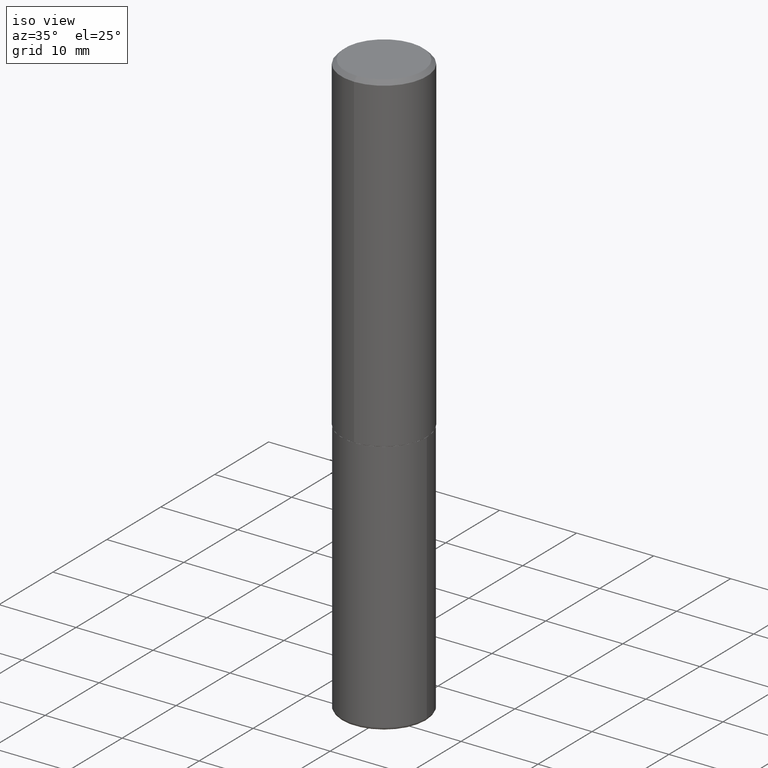
[diagram: clean part render]
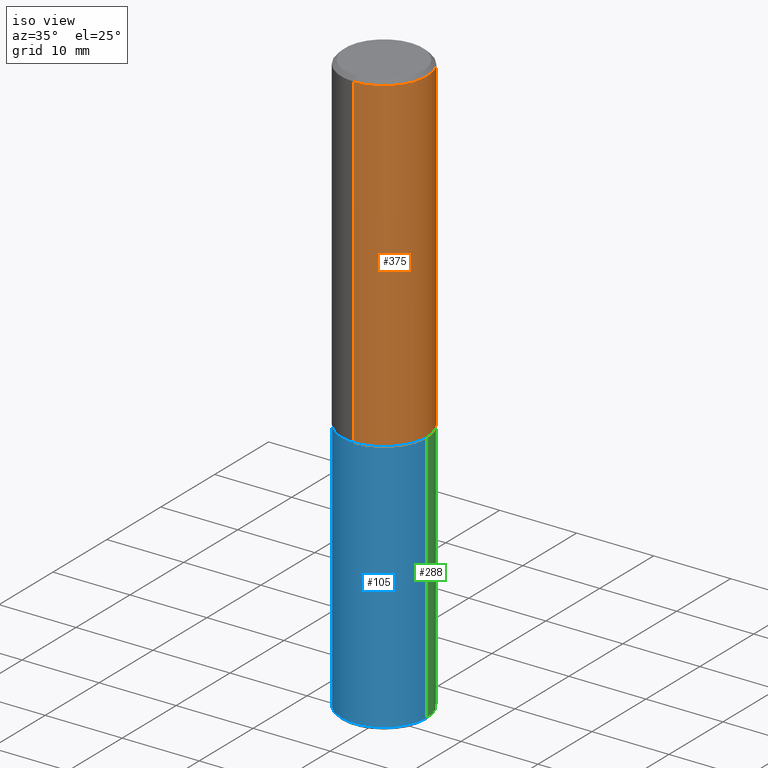
[diagram: same view with three faces highlighted in distinct colors, each labeled with its STEP entity id]
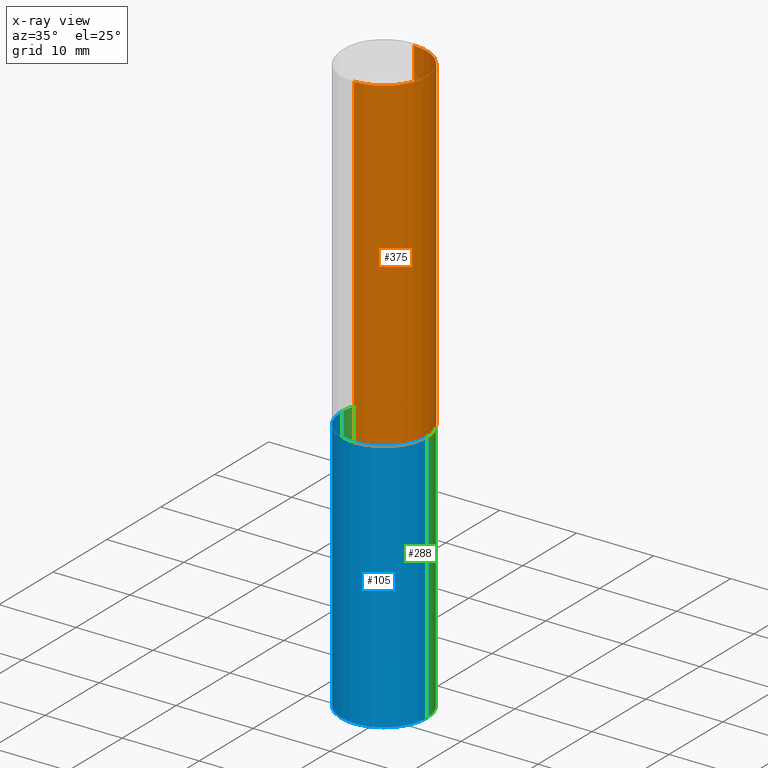
[diagram: x-ray of the same camera — body ghosted, the three highlighted faces saturated]
A machine part, iso view with three faces highlighted in distinct colors.
The next image is the same camera in x-ray (body ghosted, the three faces saturated) — at least one of them is partly hidden behind the body in this view.
Their STEP definitions:

[orange] entity #375 — the highlighted cylindrical surface (partial cylindrical patch) has radius 5.5563 mm, axis along (-0, 0, 1).
#8 = CARTESIAN_POINT ( 'NONE',  ( 4.890108441716715262E-31, -6.984150097255683598E-17, -0.02000000000000005246 ) ) ;
#10 = CARTESIAN_POINT ( 'NONE',  ( -1.500733937012521346E-15, -0.2187500000000000278, -0.01999999999999928571 ) ) ;
#11 = CARTESIAN_POINT ( 'NONE',  ( 1.527523085743870843E-15, 0.2187499999999998890, -0.02000000000000081574 ) ) ;
#16 = CARTESIAN_POINT ( 'NONE',  ( -1.527523085743831005E-15, -0.2187500000000061062, -1.686499999999999444 ) ) ;
#33 = EDGE_CURVE ( 'NONE', #82, #346, #392, .T. ) ;
#41 = EDGE_CURVE ( 'NONE', #157, #414, #361, .T. ) ;
#42 = AXIS2_PLACEMENT_3D ( 'NONE', #8, #192, #295 ) ;
#43 = AXIS2_PLACEMENT_3D ( 'NONE', #206, #347, #277 ) ;
#60 = DIRECTION ( 'NONE',  ( -2.445054220858351343E-29, 3.492075048627833097E-15, 1.000000000000000000 ) ) ;
#81 = AXIS2_PLACEMENT_3D ( 'NONE', #180, #306, #403 ) ;
#82 = VERTEX_POINT ( 'NONE', #135 ) ;
#90 = VECTOR ( 'NONE', #60, 39.37007874015748143 ) ;
#98 = EDGE_CURVE ( 'NONE', #414, #346, #353, .T. ) ;
#135 = CARTESIAN_POINT ( 'NONE',  ( 1.554312234475240653E-15, 0.2187499999999943101, -1.686500000000000998 ) ) ;
#154 = EDGE_LOOP ( 'NONE', ( #191, #188, #246, #411 ) ) ;
#157 = VERTEX_POINT ( 'NONE', #16 ) ;
#171 = CARTESIAN_POINT ( 'NONE',  ( 1.554312234475219551E-15, 0.2187500000000000833, -7.638914168873387857E-16 ) ) ;
#180 = CARTESIAN_POINT ( 'NONE',  ( 4.123583943477609610E-29, -5.889384569510841777E-15, -1.686500000000000110 ) ) ;
#188 = ORIENTED_EDGE ( 'NONE', *, *, #33, .T. ) ;
#191 = ORIENTED_EDGE ( 'NONE', *, *, #196, .T. ) ;
#192 = DIRECTION ( 'NONE',  ( -2.445054220858351343E-29, 3.492075048627833097E-15, 1.000000000000000000 ) ) ;
#196 = EDGE_CURVE ( 'NONE', #157, #82, #223, .T. ) ;
#201 = CARTESIAN_POINT ( 'NONE',  ( -1.527523085743871237E-15, -0.2187500000000000833, 7.638914168873387857E-16 ) ) ;
#206 = CARTESIAN_POINT ( 'NONE',  ( 0.000000000000000000, 0.000000000000000000, 0.000000000000000000 ) ) ;
#223 = CIRCLE ( 'NONE', #81, 0.2187500000000002220 ) ;
#245 = CYLINDRICAL_SURFACE ( 'NONE', #43, 0.2187500000000000833 ) ;
#246 = ORIENTED_EDGE ( 'NONE', *, *, #98, .F. ) ;
#277 = DIRECTION ( 'NONE',  ( -6.982962677686265922E-15, -1.000000000000000000, 3.492075048627833097E-15 ) ) ;
#295 = DIRECTION ( 'NONE',  ( -6.982962677686265922E-15, -1.000000000000000000, 3.492862791899308860E-15 ) ) ;
#306 = DIRECTION ( 'NONE',  ( -2.445054220858351343E-29, 3.492075048627833097E-15, 1.000000000000000000 ) ) ;
#346 = VERTEX_POINT ( 'NONE', #11 ) ;
#347 = DIRECTION ( 'NONE',  ( -2.445054220858351343E-29, 3.492075048627833097E-15, 1.000000000000000000 ) ) ;
#353 = CIRCLE ( 'NONE', #42, 0.2187499999999999445 ) ;
#361 = LINE ( 'NONE', #201, #408 ) ;
#370 = FACE_OUTER_BOUND ( 'NONE', #154, .T. ) ;
#375 = ADVANCED_FACE ( 'NONE', ( #370 ), #245, .T. ) ;
#385 = DIRECTION ( 'NONE',  ( -2.445054220858351343E-29, 3.492075048627833097E-15, 1.000000000000000000 ) ) ;
#392 = LINE ( 'NONE', #171, #90 ) ;
#403 = DIRECTION ( 'NONE',  ( -6.982962677686265922E-15, -1.000000000000000000, 3.746534391310985612E-15 ) ) ;
#408 = VECTOR ( 'NONE', #385, 39.37007874015748143 ) ;
#411 = ORIENTED_EDGE ( 'NONE', *, *, #41, .F. ) ;
#414 = VERTEX_POINT ( 'NONE', #10 ) ;

[blue] entity #105 — the highlighted cylindrical surface (partial cylindrical patch) has radius 5.5563 mm, axis along (-0, 0, 1).
#4 = CIRCLE ( 'NONE', #202, 0.2187500000000000000 ) ;
#17 = ORIENTED_EDGE ( 'NONE', *, *, #230, .T. ) ;
#23 = VERTEX_POINT ( 'NONE', #64 ) ;
#26 = CARTESIAN_POINT ( 'NONE',  ( 0.000000000000000000, 0.000000000000000000, 0.000000000000000000 ) ) ;
#30 = VERTEX_POINT ( 'NONE', #104 ) ;
#39 = DIRECTION ( 'NONE',  ( -2.445468806185136597E-29, 3.491481338843145583E-15, 1.000000000000000000 ) ) ;
#40 = CARTESIAN_POINT ( 'NONE',  ( 0.2187500000000000278, -1.527523085743871040E-15, 1.066663669705361025E-29 ) ) ;
#44 = DIRECTION ( 'NONE',  ( -2.445468806185136877E-29, 3.491481338843145188E-15, 1.000000000000000000 ) ) ;
#64 = CARTESIAN_POINT ( 'NONE',  ( 0.2187499999999999445, -1.194959488219066130E-14, -2.984999999999999876 ) ) ;
#65 = EDGE_CURVE ( 'NONE', #320, #23, #368, .T. ) ;
#85 = CARTESIAN_POINT ( 'NONE',  ( -0.2187500000000000000, -6.602661043397079307E-15, -1.687500000000000222 ) ) ;
#91 = ORIENTED_EDGE ( 'NONE', *, *, #65, .T. ) ;
#95 = EDGE_LOOP ( 'NONE', ( #199, #91, #17, #326 ) ) ;
#101 = DIRECTION ( 'NONE',  ( 1.000000000000000000, -6.982962677686267499E-15, 0.000000000000000000 ) ) ;
#103 = DIRECTION ( 'NONE',  ( 1.000000000000000000, -6.982962677686266711E-15, 4.876176775795935232E-29 ) ) ;
#104 = CARTESIAN_POINT ( 'NONE',  ( 0.2187500000000000000, -7.419397845041678890E-15, -1.687500000000000222 ) ) ;
#105 = ADVANCED_FACE ( 'NONE', ( #394 ), #322, .T. ) ;
#106 = CARTESIAN_POINT ( 'NONE',  ( 4.126728610437418568E-29, -5.891874759297808836E-15, -1.687500000000000222 ) ) ;
#133 = DIRECTION ( 'NONE',  ( -2.445468806185136597E-29, 3.491481338843145583E-15, 1.000000000000000000 ) ) ;
#146 = VECTOR ( 'NONE', #176, 39.37007874015748143 ) ;
#160 = VERTEX_POINT ( 'NONE', #85 ) ;
#176 = DIRECTION ( 'NONE',  ( -2.445468806185136877E-29, 3.491481338843145188E-15, 1.000000000000000000 ) ) ;
#184 = CARTESIAN_POINT ( 'NONE',  ( -0.2187500000000000278, 1.554312234475219354E-15, -1.076017050993260762E-29 ) ) ;
#197 = CARTESIAN_POINT ( 'NONE',  ( 7.299724386462632472E-29, -1.042207179644678967E-14, -2.984999999999999876 ) ) ;
#199 = ORIENTED_EDGE ( 'NONE', *, *, #413, .F. ) ;
#202 = AXIS2_PLACEMENT_3D ( 'NONE', #106, #39, #101 ) ;
#203 = VECTOR ( 'NONE', #44, 39.37007874015748143 ) ;
#205 = CARTESIAN_POINT ( 'NONE',  ( -0.2187499999999999445, -8.867759561971568934E-15, -2.984999999999999876 ) ) ;
#211 = LINE ( 'NONE', #184, #203 ) ;
#230 = EDGE_CURVE ( 'NONE', #23, #30, #274, .T. ) ;
#238 = DIRECTION ( 'NONE',  ( 1.000000000000000000, -6.982962677686271444E-15, 0.000000000000000000 ) ) ;
#271 = EDGE_CURVE ( 'NONE', #160, #30, #4, .T. ) ;
#274 = LINE ( 'NONE', #40, #146 ) ;
#291 = AXIS2_PLACEMENT_3D ( 'NONE', #197, #396, #238 ) ;
#320 = VERTEX_POINT ( 'NONE', #205 ) ;
#322 = CYLINDRICAL_SURFACE ( 'NONE', #365, 0.2187500000000000278 ) ;
#326 = ORIENTED_EDGE ( 'NONE', *, *, #271, .F. ) ;
#365 = AXIS2_PLACEMENT_3D ( 'NONE', #26, #133, #103 ) ;
#368 = CIRCLE ( 'NONE', #291, 0.2187500000000000278 ) ;
#394 = FACE_OUTER_BOUND ( 'NONE', #95, .T. ) ;
#396 = DIRECTION ( 'NONE',  ( -2.445468806185136597E-29, 3.491481338843145583E-15, 1.000000000000000000 ) ) ;
#413 = EDGE_CURVE ( 'NONE', #320, #160, #211, .T. ) ;

[green] entity #288 — the highlighted cylindrical surface (partial cylindrical patch) has radius 5.5563 mm, axis along (-0, 0, 1).
#7 = FACE_OUTER_BOUND ( 'NONE', #381, .T. ) ;
#23 = VERTEX_POINT ( 'NONE', #64 ) ;
#25 = ORIENTED_EDGE ( 'NONE', *, *, #230, .F. ) ;
#30 = VERTEX_POINT ( 'NONE', #104 ) ;
#40 = CARTESIAN_POINT ( 'NONE',  ( 0.2187500000000000278, -1.527523085743871040E-15, 1.066663669705361025E-29 ) ) ;
#44 = DIRECTION ( 'NONE',  ( -2.445468806185136877E-29, 3.491481338843145188E-15, 1.000000000000000000 ) ) ;
#55 = CIRCLE ( 'NONE', #248, 0.2187500000000000000 ) ;
#64 = CARTESIAN_POINT ( 'NONE',  ( 0.2187499999999999445, -1.194959488219066130E-14, -2.984999999999999876 ) ) ;
#69 = CARTESIAN_POINT ( 'NONE',  ( 4.126728610437418568E-29, -5.891874759297808836E-15, -1.687500000000000222 ) ) ;
#85 = CARTESIAN_POINT ( 'NONE',  ( -0.2187500000000000000, -6.602661043397079307E-15, -1.687500000000000222 ) ) ;
#104 = CARTESIAN_POINT ( 'NONE',  ( 0.2187500000000000000, -7.419397845041678890E-15, -1.687500000000000222 ) ) ;
#142 = CYLINDRICAL_SURFACE ( 'NONE', #242, 0.2187500000000000278 ) ;
#145 = DIRECTION ( 'NONE',  ( -2.445468806185136597E-29, 3.491481338843145583E-15, 1.000000000000000000 ) ) ;
#146 = VECTOR ( 'NONE', #176, 39.37007874015748143 ) ;
#160 = VERTEX_POINT ( 'NONE', #85 ) ;
#163 = EDGE_CURVE ( 'NONE', #23, #320, #400, .T. ) ;
#176 = DIRECTION ( 'NONE',  ( -2.445468806185136877E-29, 3.491481338843145188E-15, 1.000000000000000000 ) ) ;
#177 = DIRECTION ( 'NONE',  ( 1.000000000000000000, -6.982962677686266711E-15, 4.876176775795935232E-29 ) ) ;
#184 = CARTESIAN_POINT ( 'NONE',  ( -0.2187500000000000278, 1.554312234475219354E-15, -1.076017050993260762E-29 ) ) ;
#203 = VECTOR ( 'NONE', #44, 39.37007874015748143 ) ;
#205 = CARTESIAN_POINT ( 'NONE',  ( -0.2187499999999999445, -8.867759561971568934E-15, -2.984999999999999876 ) ) ;
#207 = AXIS2_PLACEMENT_3D ( 'NONE', #218, #349, #212 ) ;
#211 = LINE ( 'NONE', #184, #203 ) ;
#212 = DIRECTION ( 'NONE',  ( 1.000000000000000000, -6.982962677686271444E-15, 0.000000000000000000 ) ) ;
#218 = CARTESIAN_POINT ( 'NONE',  ( 7.299724386462632472E-29, -1.042207179644678967E-14, -2.984999999999999876 ) ) ;
#230 = EDGE_CURVE ( 'NONE', #23, #30, #274, .T. ) ;
#242 = AXIS2_PLACEMENT_3D ( 'NONE', #366, #270, #177 ) ;
#248 = AXIS2_PLACEMENT_3D ( 'NONE', #69, #145, #395 ) ;
#258 = ORIENTED_EDGE ( 'NONE', *, *, #413, .T. ) ;
#270 = DIRECTION ( 'NONE',  ( -2.445468806185136597E-29, 3.491481338843145583E-15, 1.000000000000000000 ) ) ;
#274 = LINE ( 'NONE', #40, #146 ) ;
#288 = ADVANCED_FACE ( 'NONE', ( #7 ), #142, .T. ) ;
#299 = EDGE_CURVE ( 'NONE', #30, #160, #55, .T. ) ;
#320 = VERTEX_POINT ( 'NONE', #205 ) ;
#349 = DIRECTION ( 'NONE',  ( -2.445468806185136597E-29, 3.491481338843145583E-15, 1.000000000000000000 ) ) ;
#352 = ORIENTED_EDGE ( 'NONE', *, *, #299, .F. ) ;
#366 = CARTESIAN_POINT ( 'NONE',  ( 0.000000000000000000, 0.000000000000000000, 0.000000000000000000 ) ) ;
#374 = ORIENTED_EDGE ( 'NONE', *, *, #163, .T. ) ;
#381 = EDGE_LOOP ( 'NONE', ( #374, #258, #352, #25 ) ) ;
#395 = DIRECTION ( 'NONE',  ( 1.000000000000000000, -6.982962677686267499E-15, 0.000000000000000000 ) ) ;
#400 = CIRCLE ( 'NONE', #207, 0.2187500000000000278 ) ;
#413 = EDGE_CURVE ( 'NONE', #320, #160, #211, .T. ) ;